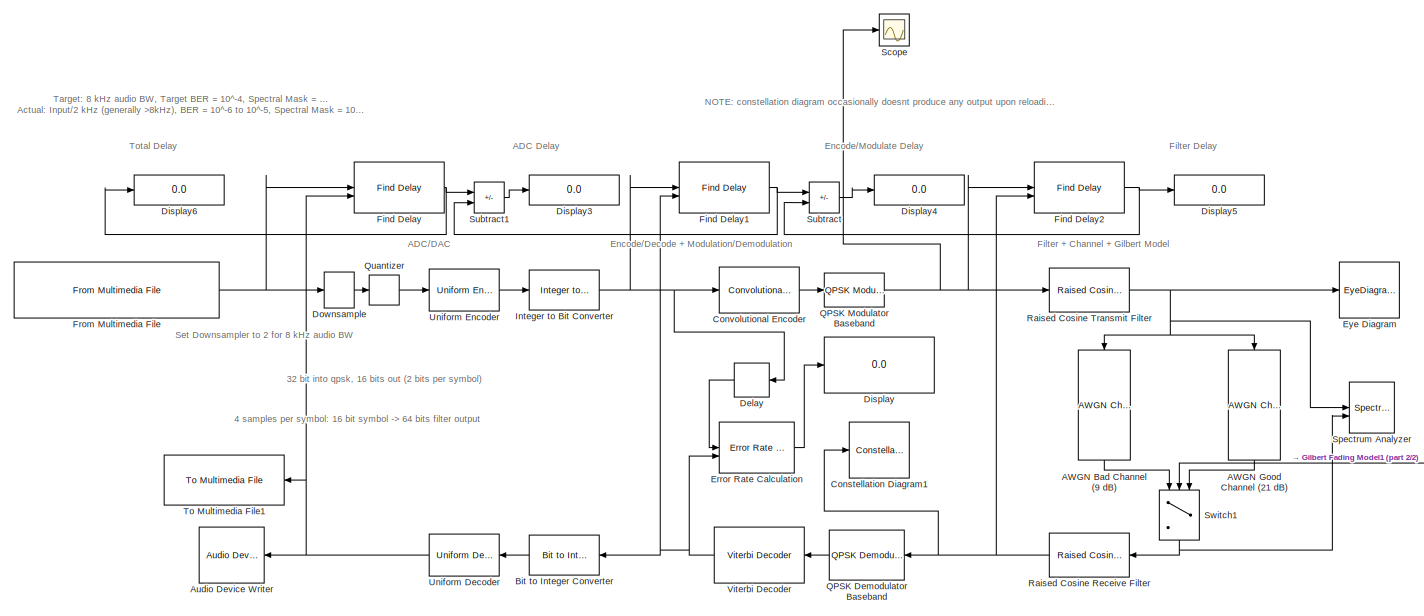
[diagram: root canvas - part 1/2, most of the canvas]
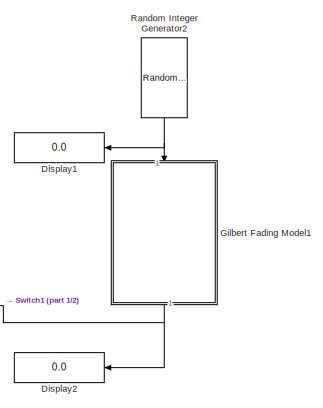
[diagram: root canvas - part 2/2, middle right region]
MODEL slx_4940f80ba724
KIND model
CONFIG AbsTol = auto
CONFIG EnableMultiTasking = off
CONFIG FixedStep = auto
CONFIG MaxStep = auto
CONFIG MinStep = auto
CONFIG RelTol = 1e-3
CONFIG SampleTimeConstraint = Unconstrained
CONFIG SolverName = VariableStepAuto
CONFIG StartTime = 0.0
CONFIG StopTime = 30
BLOCK [Reference] AWGN Bad Channel (9 dB)  REF=commchan3/AWGN
Channel
  NameLocation = left
  SourceBlock = commchan3/AWGN\nChannel
  SourceType = AWGN Channel
BLOCK [Reference] AWGN Good Channel (21 dB)  REF=commchan3/AWGN
Channel
  NameLocation = left
  SourceBlock = commchan3/AWGN\nChannel
  SourceType = AWGN Channel
BLOCK [Reference] Audio Device Writer  REF=dspsnks4/Audio Device
Writer
  LibrarySourceBlock = audiosinks/Audio Device\nWriter
  NameLocation = top
  SourceBlock = dspsnks4/Audio Device\nWriter
  SourceType = Audio Device Writer
BLOCK [Reference] Bit to Integer Converter  REF=simulink/Logic and Bit
Operations/Bit to Integer
Converter
  NameLocation = top
  SourceBlock = simulink/Logic and Bit\nOperations/Bit to Integer\nConverter
  SourceType = Bit to Integer Converter
BLOCK [ConstellationDiagram] Constellation Diagram1
  GraphicalSettings = {"GraphicalSettings":{"Style":{}}}
  ScopeFrameLocation = window
  Visible = on
  WasSavedAsWebScope = on
  WindowPosition = [931.000000,31.000000,600.000000,600.000000,]
BLOCK [Reference] Convolutional Encoder  REF=commcnvcod2/Convolutional
Encoder
  LibrarySourceBlock = commhdlcnvcod/Convolutional\nEncoder
  SourceBlock = commcnvcod2/Convolutional\nEncoder
  SourceType = Convolutional Encoder
BLOCK [Delay] Delay
  DelayLength = 3
  InitialCondition = 0
  InputPortMap = u0
  NameLocation = top
BLOCK [Display] Display
  Decimation = 1
BLOCK [Display] Display1
  Decimation = 1
  NameLocation = top
BLOCK [Display] Display2
  Decimation = 1
  NameLocation = top
BLOCK [Display] Display3
  Decimation = 1
BLOCK [Display] Display4
  Decimation = 1
BLOCK [Display] Display5
  Decimation = 1
BLOCK [Display] Display6
  Decimation = 1
BLOCK [DownSample] Downsample
  RateOptions = Allow multirate processing
BLOCK [Reference] Error Rate Calculation  REF=commsink2/Error Rate
Calculation
  SourceBlock = commsink2/Error Rate\nCalculation
  SourceType = Error Rate Calculation
BLOCK [EyeDiagramBlock] Eye Diagram
  ScopeFrameLocation = window
  Visible = on
  WasSavedAsWebScope = on
  WindowPosition = [563.000000,200.000000,800.000000,500.000000,]
BLOCK [Reference] Find Delay  REF=commutil2/Find Delay
  SourceBlock = commutil2/Find Delay
  SourceType = Find Delay
BLOCK [Reference] Find Delay1  REF=commutil2/Find Delay
  SourceBlock = commutil2/Find Delay
  SourceType = Find Delay
BLOCK [Reference] Find Delay2  REF=commutil2/Find Delay
  SourceBlock = commutil2/Find Delay
  SourceType = Find Delay
BLOCK [Reference] From Multimedia File  REF=dspvision/From Multimedia File
  LibrarySourceBlock = audiosources/From Multimedia File
  SourceBlock = dspvision/From Multimedia File
  SourceType = From Multimedia File
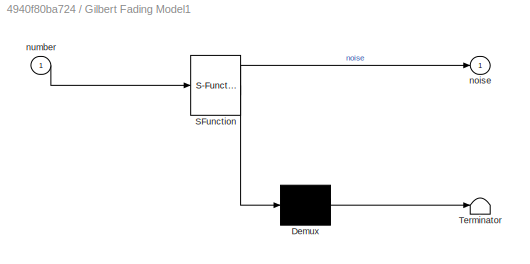
BLOCK [SubSystem] Gilbert Fading Model1
  ErrorFcn = Stateflow.Translate.translate
  NameLocation = left
  PermitHierarchicalResolution = ExplicitOnly
  SFBlockType = Chart
  TreatAsAtomicUnit = on
BLOCK [Demux] Gilbert Fading Model1/ Demux 
  Outputs = 1
BLOCK [S-Function] Gilbert Fading Model1/ SFunction 
  EnableBusSupport = on
  FunctionName = sf_sfun
  PortCounts = [1 2]
  SFcnIsStateOwnerBlock = off
  SFunctionDeploymentMode = off
  Tag = Stateflow S-Function 1
BLOCK [Terminator] Gilbert Fading Model1/ Terminator 
BLOCK [Outport] Gilbert Fading Model1/noise
BLOCK [Inport] Gilbert Fading Model1/number
BLOCK [Reference] Integer to Bit Converter  REF=simulink/Logic and Bit
Operations/Integer to Bit
Converter
  SourceBlock = simulink/Logic and Bit\nOperations/Integer to Bit\nConverter
  SourceType = Integer to Bit Converter
BLOCK [Reference] QPSK Demodulator Baseband  REF=commdigbbndpm3/QPSK
Demodulator
Baseband
  LibrarySourceBlock = commhdldigbbndpm/QPSK\nDemodulator\nBaseband
  NameLocation = top
  SourceBlock = commdigbbndpm3/QPSK\nDemodulator\nBaseband
  SourceType = QPSK Demodulator Baseband
BLOCK [Reference] QPSK Modulator Baseband  REF=commdigbbndpm3/QPSK
Modulator
Baseband
  LibrarySourceBlock = commhdldigbbndpm/QPSK\nModulator\nBaseband
  SourceBlock = commdigbbndpm3/QPSK\nModulator\nBaseband
  SourceType = QPSK Modulator Baseband
BLOCK [Quantizer] Quantizer
  QuantizationInterval = 0.0625
BLOCK [Reference] Raised Cosine Receive Filter  REF=commfilt2/Raised Cosine
Receive Filter
  LibrarySourceBlock = commhdlfilt/Raised Cosine\nReceive Filter
  NameLocation = top
  SourceBlock = commfilt2/Raised Cosine\nReceive Filter
  SourceType = Raised Cosine Receive Filter
  UserDataPersistent = on
BLOCK [Reference] Raised Cosine Transmit Filter  REF=commfilt2/Raised Cosine
Transmit Filter
  LibrarySourceBlock = commhdlfilt/Raised Cosine\nTransmit Filter
  SourceBlock = commfilt2/Raised Cosine\nTransmit Filter
  SourceType = Raised Cosine Transmit Filter
  UserDataPersistent = on
BLOCK [Reference] Random Integer Generator2  REF=commrandsrc3/Random Integer
Generator
  NameLocation = left
  SourceBlock = commrandsrc3/Random Integer\nGenerator
  SourceType = Random Integer Generator
BLOCK [Scope] Scope
  Floating = off
  NumInputPorts = 1
  ScopeSpecificationString = Simulink.scopes.TimeScopeBlockCfg('CurrentConfiguration', extmgr.ConfigurationSet(extmgr.Configuration('Core','General UI',true),extmgr.Configuration('Core','Source UI',true),extmgr.Configuration('Sources','WiredSimulink',true),extmgr.Configuration('Visuals','Time Domain',true,'SerializedDisplays',{struct('MinYLimReal','-0.88388','MaxYLimReal','0.88388','YLabelReal','','MinYLimMag','0.00000','MaxY...<+2449ch>
BLOCK [SpectrumAnalyzer] Spectrum Analyzer
  ExpandToolstrip = on
  GraphicalSettings = {"GraphicalSettings":{"Style":{"BackgroundColor":[0.12941176470588237,0.12941176470588237,0.12941176470588237],"AxesColor":[0.07058823529411765,0.07058823529411765,0.07058823529411765],"LabelsColor":[0.8509803921568627,0.8509803921568627,0.8509803921568627],"PreserveColors":false,"Visible":[true,true],"LineStyle":["-","-"],"LineColor":[[1,0.9098039215686274,0.39215686274509803],[0.1490196078431372...<+1069ch>
  NumInputPorts = 2
  ScopeFrameLocation = window
  ShowLegend = on
  Span = 128000
  StartFrequency = -64000
  StopFrequency = 64000
  Visible = on
  WasSavedAsWebScope = on
  WindowPosition = [622.000000,147.000000,960.000000,623.000000,]
  YLimits = [-111.32557264,33.81595837]
BLOCK [Sum] Subtract
  IconShape = rectangular
  Inputs = +-
BLOCK [Sum] Subtract1
  IconShape = rectangular
  Inputs = +-
BLOCK [Switch] Switch1
  Criteria = u2 > Threshold
  InputSameDT = off
  NameLocation = left
  SaturateOnIntegerOverflow = off
  Threshold = 9
BLOCK [Reference] To Multimedia File1  REF=dspvision/To Multimedia File
  LibrarySourceBlock = dspsnks4/To Multimedia File
  NameLocation = top
  SourceBlock = dspvision/To Multimedia File
  SourceType = To Multimedia File
BLOCK [Reference] Uniform Decoder  REF=dspquant2/Uniform
Decoder
  NameLocation = top
  SourceBlock = dspquant2/Uniform\nDecoder
  SourceType = Uniform Decoder
BLOCK [Reference] Uniform Encoder  REF=dspquant2/Uniform
Encoder
  SourceBlock = dspquant2/Uniform\nEncoder
  SourceType = Uniform Encoder
BLOCK [Reference] Viterbi Decoder  REF=commcnvcod2/Viterbi Decoder
  LibrarySourceBlock = commhdlcnvcod/Viterbi Decoder
  NameLocation = top
  SourceBlock = commcnvcod2/Viterbi Decoder
  SourceType = Viterbi Decoder
ANNOTATION (root): 32 bit into qpsk, 16 bits out (2 bits per symbol)
ANNOTATION (root): 4 samples per symbol: 16 bit symbol -> 64 bits filter output
ANNOTATION (root): Encode/Decode + Modulation/Demodulation
ANNOTATION (root): ADC/DAC
ANNOTATION (root): Filter + Channel + Gilbert Model
ANNOTATION (root): ADC Delay
ANNOTATION (root): Encode/Modulate Delay
ANNOTATION (root): Filter Delay
ANNOTATION (root): NOTE: constellation diagram occasionally doesnt produce any output upon reloading model, Gilbert model works fine for swapping between 9dB/21dB channels
ANNOTATION (root): Set Downsampler to 2 for 8 kHz audio BW
ANNOTATION (root): Target: 8 kHz audio BW, Target BER = 10^-4, Spectral Mask = 100 kHz, Target Channel = Gamma, Delay = 25 ms Actual: Input/2 kHz (generally >8kHz), BER = 10^-6 to 10^-5, Spectral Mask = 100 kHz, Channel = Gamma, Delay = ~100-150 ms
ANNOTATION (root): Total Delay
LINE AWGN Bad Channel (9 dB):1 -> Switch1:1
LINE AWGN Good Channel (21 dB):1 -> Switch1:3
LINE Bit to Integer Converter:1 -> Uniform Decoder:1
LINE Convolutional Encoder:1 -> QPSK Modulator Baseband:1
LINE Delay:1 -> Error Rate Calculation:1
LINE Downsample:1 -> Quantizer:1
LINE Error Rate Calculation:1 -> Display:1
NET Find Delay1:1 -> Subtract1:2, Subtract:1
NET Find Delay2:1 -> Display5:1, Subtract:2
NET Find Delay:1 -> Display6:1, Subtract1:1
NET From Multimedia File:1 -> Downsample:1, Find Delay:1
NET Gilbert Fading Model1:1 -> Display2:1, Switch1:2
NET Integer to Bit Converter:1 -> Convolutional Encoder:1, Delay:1, Find Delay1:1
LINE QPSK Demodulator Baseband:1 -> Viterbi Decoder:1
NET QPSK Modulator Baseband:1 -> Find Delay2:1, Raised Cosine Transmit Filter:1, Scope:1
LINE Quantizer:1 -> Uniform Encoder:1
NET Raised Cosine Receive Filter:1 -> Constellation Diagram1:1, Find Delay2:2, QPSK Demodulator Baseband:1
NET Raised Cosine Transmit Filter:1 -> AWGN Bad Channel (9 dB):1, AWGN Good Channel (21 dB):1, Eye Diagram:1, Spectrum Analyzer:1
NET Random Integer Generator2:1 -> Display1:1, Gilbert Fading Model1:1
LINE Subtract1:1 -> Display3:1
LINE Subtract:1 -> Display4:1
NET Switch1:1 -> Raised Cosine Receive Filter:1, Spectrum Analyzer:2
NET Uniform Decoder:1 -> Audio Device Writer:1, Find Delay:2, To Multimedia File1:1
LINE Uniform Encoder:1 -> Integer to Bit Converter:1
NET Viterbi Decoder:1 -> Bit to Integer Converter:1, Error Rate Calculation:2, Find Delay1:2
note: NET lines group one-source signal fan-out (src -> all destinations, sorted); 1:1 wires keep LINE
CHART Gilbert Fading Model1 states=2 transitions=5
  STATE_LABEL 'Noise_Variance_BAD\nnoise = 9;'
  STATE_LABEL 'Nosie_Variance_Good\nnoise = 21;'
CHART  states=0 transitions=0
